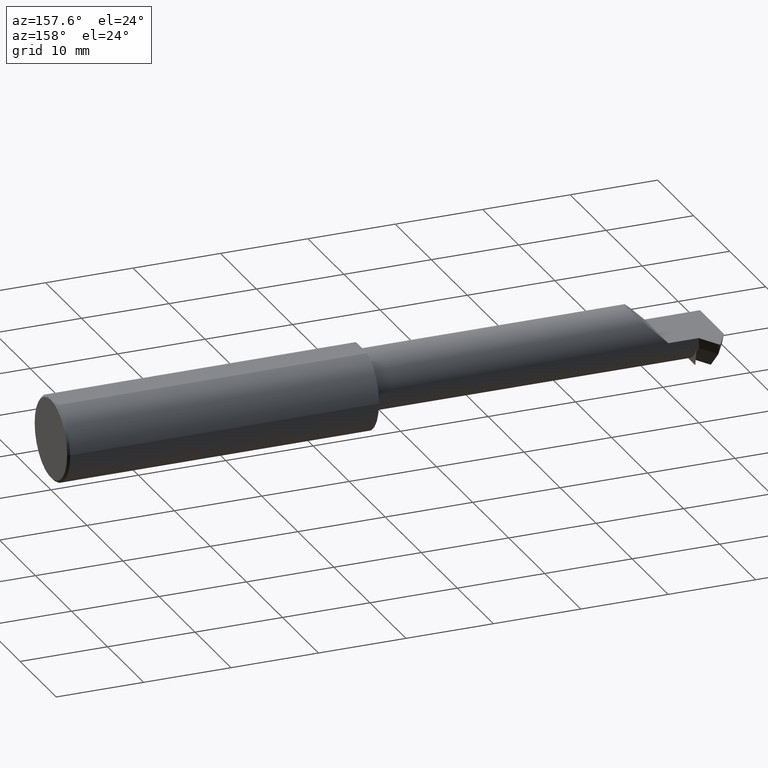
[diagram: clean part render]
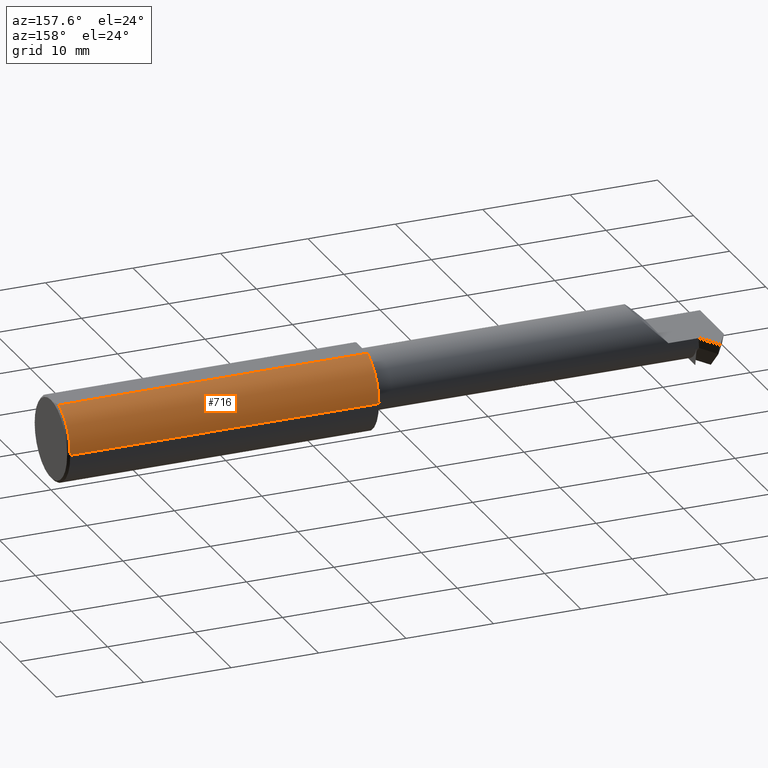
[diagram: same view with one face highlighted and labeled with its STEP entity id]
A machine part, auxiliary view. The second image highlights one B-rep face of the part: STEP entity #716.
In plain terms, the highlighted cylindrical surface (partial cylindrical patch) has radius 4.7587 mm, axis along (1, 0, -0).
Its self-contained STEP definition (entity closure, byte-faithful):
#3 = ORIENTED_EDGE ( 'NONE', *, *, #769, .T. ) ;
#5 = CARTESIAN_POINT ( 'NONE',  ( -1.400000000000000133, 1.347111479062088257E-16, 0.000000000000000000 ) ) ;
#32 = CIRCLE ( 'NONE', #777, 0.1873499999999999888 ) ;
#57 = FACE_OUTER_BOUND ( 'NONE', #680, .T. ) ;
#136 = DIRECTION ( 'NONE',  ( 1.000000000000000000, 1.224646799147352961E-16, -0.000000000000000000 ) ) ;
#139 = CARTESIAN_POINT ( 'NONE',  ( -0.009999999999999620304, 0.06039039658753714984, 0.1773500000000000354 ) ) ;
#211 = ORIENTED_EDGE ( 'NONE', *, *, #327, .F. ) ;
#212 = CARTESIAN_POINT ( 'NONE',  ( -3.000000000000000444, 0.1873499999999999055, 0.000000000000000000 ) ) ;
#224 = VECTOR ( 'NONE', #136, 39.37007874015748143 ) ;
#234 = AXIS2_PLACEMENT_3D ( 'NONE', #452, #598, #778 ) ;
#247 = CYLINDRICAL_SURFACE ( 'NONE', #234, 0.1873499999999999888 ) ;
#288 = CARTESIAN_POINT ( 'NONE',  ( -1.400000000000000133, 0.06039039658753714290, 0.1773500000000000909 ) ) ;
#327 = EDGE_CURVE ( 'NONE', #503, #630, #660, .T. ) ;
#343 = VERTEX_POINT ( 'NONE', #502 ) ;
#352 = AXIS2_PLACEMENT_3D ( 'NONE', #5, #673, #677 ) ;
#384 = ORIENTED_EDGE ( 'NONE', *, *, #414, .T. ) ;
#414 = EDGE_CURVE ( 'NONE', #343, #630, #671, .T. ) ;
#423 = EDGE_CURVE ( 'NONE', #343, #723, #611, .T. ) ;
#447 = CARTESIAN_POINT ( 'NONE',  ( -0.009999999999999620304, 3.049370529876909883E-16, 0.000000000000000000 ) ) ;
#452 = CARTESIAN_POINT ( 'NONE',  ( -3.000000000000000444, -6.123233995736767268E-17, 0.000000000000000000 ) ) ;
#486 = VECTOR ( 'NONE', #836, 39.37007874015748143 ) ;
#502 = CARTESIAN_POINT ( 'NONE',  ( -1.400000000000000133, 0.1873500000000000998, 0.000000000000000000 ) ) ;
#503 = VERTEX_POINT ( 'NONE', #139 ) ;
#558 = ORIENTED_EDGE ( 'NONE', *, *, #423, .F. ) ;
#593 = DIRECTION ( 'NONE',  ( -1.253099476677462608E-16, 1.000000000000000000, -8.881784197001252323E-16 ) ) ;
#598 = DIRECTION ( 'NONE',  ( 1.000000000000000000, 1.224646799147352961E-16, -0.000000000000000000 ) ) ;
#611 = LINE ( 'NONE', #212, #224 ) ;
#630 = VERTEX_POINT ( 'NONE', #288 ) ;
#660 = LINE ( 'NONE', #730, #486 ) ;
#671 = CIRCLE ( 'NONE', #352, 0.1873499999999999888 ) ;
#673 = DIRECTION ( 'NONE',  ( 1.000000000000000000, 9.422009876951564852E-18, 0.000000000000000000 ) ) ;
#677 = DIRECTION ( 'NONE',  ( 0.000000000000000000, -1.000000000000000000, -8.881784197001252323E-16 ) ) ;
#680 = EDGE_LOOP ( 'NONE', ( #558, #384, #211, #3 ) ) ;
#716 = ADVANCED_FACE ( 'NONE', ( #57 ), #247, .T. ) ;
#720 = DIRECTION ( 'NONE',  ( -1.000000000000000000, -1.224646799147313518E-16, 0.000000000000000000 ) ) ;
#723 = VERTEX_POINT ( 'NONE', #853 ) ;
#730 = CARTESIAN_POINT ( 'NONE',  ( -3.000000000000000444, 0.06039039658753678902, 0.1773500000000000354 ) ) ;
#769 = EDGE_CURVE ( 'NONE', #503, #723, #32, .T. ) ;
#777 = AXIS2_PLACEMENT_3D ( 'NONE', #447, #720, #593 ) ;
#778 = DIRECTION ( 'NONE',  ( 0.000000000000000000, 1.000000000000000000, 0.000000000000000000 ) ) ;
#836 = DIRECTION ( 'NONE',  ( -1.000000000000000000, -1.224646799147352961E-16, 0.000000000000000000 ) ) ;
#853 = CARTESIAN_POINT ( 'NONE',  ( -0.009999999999999642855, 0.1873500000000002941, 0.000000000000000000 ) ) ;